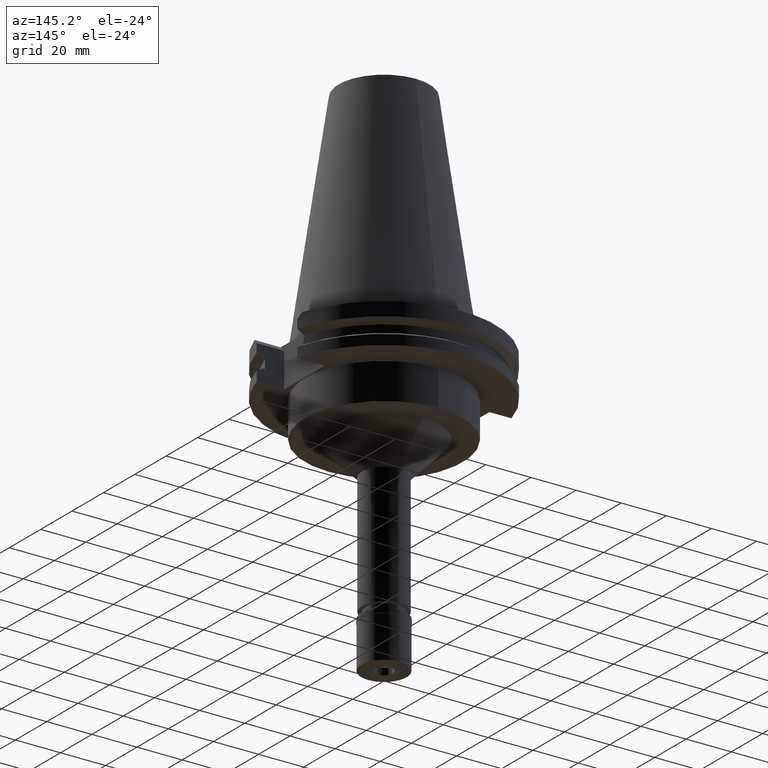
[diagram: clean part render]
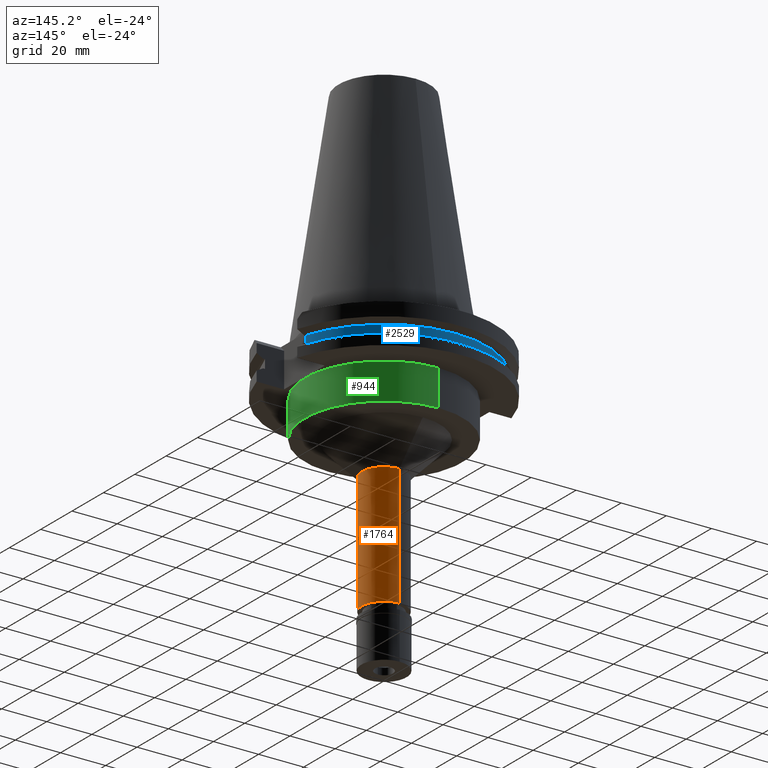
[diagram: same view with three faces highlighted in distinct colors, each labeled with its STEP entity id]
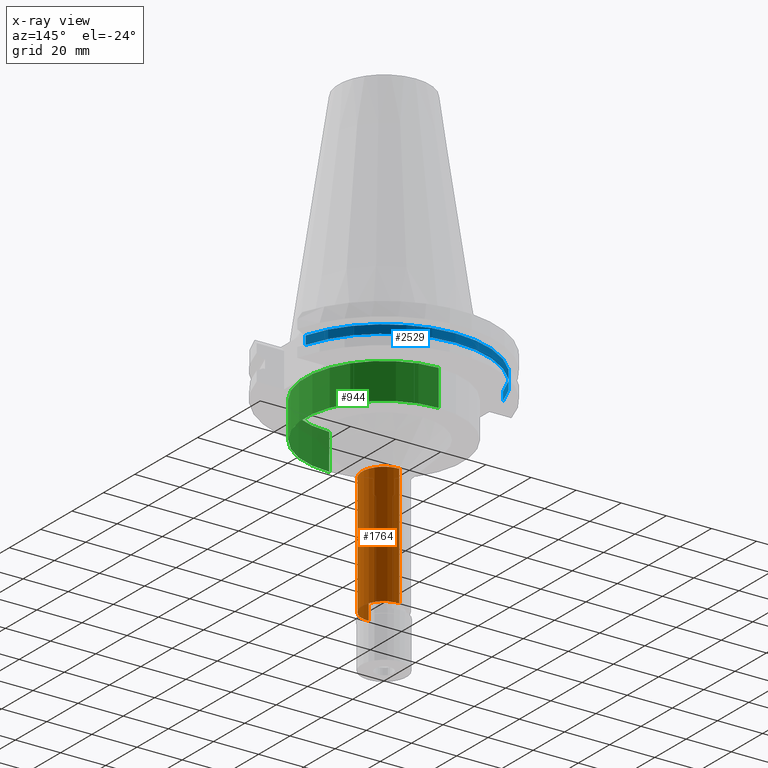
[diagram: x-ray of the same camera — body ghosted, the three highlighted faces saturated]
A machine part, auxiliary view with three faces highlighted in distinct colors.
The next image is the same camera in x-ray (body ghosted, the three faces saturated) — at least one of them is partly hidden behind the body in this view.
Their STEP definitions:

[orange] entity #1764 — the highlighted cylindrical surface (edge-blend (fillet) strip) has radius 9.75 mm, axis along (0, 0, -1).
#15 = VECTOR ( 'NONE', #2985, 1000.000000000000000 ) ;
#98 = DIRECTION ( 'NONE',  ( 0.0000000000000000000, 0.0000000000000000000, -1.000000000000000000 ) ) ;
#159 = CARTESIAN_POINT ( 'NONE',  ( 0.0000000000000000000, 9.750000000000000000, -50.00000000000000000 ) ) ;
#237 = CIRCLE ( 'NONE', #2814, 9.750000000000000000 ) ;
#255 = CARTESIAN_POINT ( 'NONE',  ( 0.0000000000000000000, 9.750000000000000000, -103.5999999999999943 ) ) ;
#349 = CARTESIAN_POINT ( 'NONE',  ( 0.0000000000000000000, 9.750000000000000000, -50.00000000000000000 ) ) ;
#390 = DIRECTION ( 'NONE',  ( 0.0000000000000000000, 0.0000000000000000000, 1.000000000000000000 ) ) ;
#404 = VERTEX_POINT ( 'NONE', #918 ) ;
#695 = CARTESIAN_POINT ( 'NONE',  ( 0.0000000000000000000, -9.750000000000000000, -50.00000000000000000 ) ) ;
#702 = LINE ( 'NONE', #159, #15 ) ;
#741 = CYLINDRICAL_SURFACE ( 'NONE', #1033, 9.750000000000000000 ) ;
#918 = CARTESIAN_POINT ( 'NONE',  ( 0.0000000000000000000, -9.750000000000000000, -103.5999999999999943 ) ) ;
#940 = DIRECTION ( 'NONE',  ( 0.0000000000000000000, -1.000000000000000000, 0.0000000000000000000 ) ) ;
#970 = DIRECTION ( 'NONE',  ( 0.0000000000000000000, -1.000000000000000000, 0.0000000000000000000 ) ) ;
#1033 = AXIS2_PLACEMENT_3D ( 'NONE', #1514, #2054, #970 ) ;
#1115 = ORIENTED_EDGE ( 'NONE', *, *, #2367, .T. ) ;
#1180 = CARTESIAN_POINT ( 'NONE',  ( 0.0000000000000000000, -9.750000000000000000, -50.00000000000000000 ) ) ;
#1202 = AXIS2_PLACEMENT_3D ( 'NONE', #3271, #390, #940 ) ;
#1233 = ORIENTED_EDGE ( 'NONE', *, *, #2487, .T. ) ;
#1290 = VERTEX_POINT ( 'NONE', #255 ) ;
#1514 = CARTESIAN_POINT ( 'NONE',  ( 0.0000000000000000000, 2.603966489026999937E-14, 112.6299999999999955 ) ) ;
#1532 = VERTEX_POINT ( 'NONE', #349 ) ;
#1636 = ORIENTED_EDGE ( 'NONE', *, *, #2383, .F. ) ;
#1637 = CIRCLE ( 'NONE', #1202, 9.750000000000000000 ) ;
#1764 = ADVANCED_FACE ( 'NONE', ( #2798 ), #741, .T. ) ;
#1988 = CARTESIAN_POINT ( 'NONE',  ( 0.0000000000000000000, 0.0000000000000000000, -50.00000000000000000 ) ) ;
#2018 = VECTOR ( 'NONE', #98, 1000.000000000000000 ) ;
#2054 = DIRECTION ( 'NONE',  ( 0.0000000000000000000, 0.0000000000000000000, -1.000000000000000000 ) ) ;
#2132 = VERTEX_POINT ( 'NONE', #1180 ) ;
#2237 = DIRECTION ( 'NONE',  ( 0.0000000000000000000, 1.000000000000000000, 0.0000000000000000000 ) ) ;
#2238 = EDGE_CURVE ( 'NONE', #2132, #404, #2995, .T. ) ;
#2240 = ORIENTED_EDGE ( 'NONE', *, *, #2238, .T. ) ;
#2367 = EDGE_CURVE ( 'NONE', #1532, #2132, #237, .T. ) ;
#2383 = EDGE_CURVE ( 'NONE', #1532, #1290, #702, .T. ) ;
#2487 = EDGE_CURVE ( 'NONE', #404, #1290, #1637, .T. ) ;
#2535 = EDGE_LOOP ( 'NONE', ( #1115, #2240, #1233, #1636 ) ) ;
#2798 = FACE_OUTER_BOUND ( 'NONE', #2535, .T. ) ;
#2814 = AXIS2_PLACEMENT_3D ( 'NONE', #1988, #3224, #2237 ) ;
#2985 = DIRECTION ( 'NONE',  ( 0.0000000000000000000, 0.0000000000000000000, -1.000000000000000000 ) ) ;
#2995 = LINE ( 'NONE', #695, #2018 ) ;
#3224 = DIRECTION ( 'NONE',  ( 0.0000000000000000000, 0.0000000000000000000, -1.000000000000000000 ) ) ;
#3271 = CARTESIAN_POINT ( 'NONE',  ( 0.0000000000000000000, 2.603966489026999937E-14, -103.5999999999999943 ) ) ;

[blue] entity #2529 — the highlighted cylindrical surface (partial cylindrical patch) has radius 45.645 mm, axis along (0, 0, -1).
#141 = FACE_OUTER_BOUND ( 'NONE', #541, .T. ) ;
#145 = VERTEX_POINT ( 'NONE', #3043 ) ;
#180 = VECTOR ( 'NONE', #2021, 1000.000000000000000 ) ;
#181 = VERTEX_POINT ( 'NONE', #2313 ) ;
#192 = DIRECTION ( 'NONE',  ( 0.0000000000000000000, -1.000000000000000000, 0.0000000000000000000 ) ) ;
#279 = CARTESIAN_POINT ( 'NONE',  ( 0.0000000000000000000, 2.603966489026999937E-14, -13.04749999999999943 ) ) ;
#350 = DIRECTION ( 'NONE',  ( 0.0000000000000000000, 0.0000000000000000000, 1.000000000000000000 ) ) ;
#541 = EDGE_LOOP ( 'NONE', ( #2448, #996, #1914, #621 ) ) ;
#621 = ORIENTED_EDGE ( 'NONE', *, *, #1849, .T. ) ;
#680 = CYLINDRICAL_SURFACE ( 'NONE', #1417, 45.64499999999999602 ) ;
#690 = VECTOR ( 'NONE', #350, 1000.000000000000000 ) ;
#807 = CARTESIAN_POINT ( 'NONE',  ( -43.76795631508999662, 12.95500000000000007, -9.207499999999999574 ) ) ;
#818 = EDGE_CURVE ( 'NONE', #145, #2354, #2866, .T. ) ;
#932 = CIRCLE ( 'NONE', #2371, 45.64500000000001734 ) ;
#996 = ORIENTED_EDGE ( 'NONE', *, *, #1640, .T. ) ;
#1169 = DIRECTION ( 'NONE',  ( 0.0000000000000000000, 0.0000000000000000000, -1.000000000000000000 ) ) ;
#1275 = VERTEX_POINT ( 'NONE', #2821 ) ;
#1311 = AXIS2_PLACEMENT_3D ( 'NONE', #1458, #2198, #1419 ) ;
#1358 = CARTESIAN_POINT ( 'NONE',  ( 43.76795631508999662, 12.95500000000000007, -13.04749999999999943 ) ) ;
#1417 = AXIS2_PLACEMENT_3D ( 'NONE', #2738, #1169, #192 ) ;
#1419 = DIRECTION ( 'NONE',  ( 0.0000000000000000000, 1.000000000000000000, 0.0000000000000000000 ) ) ;
#1427 = CARTESIAN_POINT ( 'NONE',  ( 43.76795631508999662, 12.95500000000000007, -9.207499999999999574 ) ) ;
#1458 = CARTESIAN_POINT ( 'NONE',  ( 0.0000000000000000000, 2.603966489026999937E-14, -9.207499999999999574 ) ) ;
#1476 = CIRCLE ( 'NONE', #1311, 45.64499999999999602 ) ;
#1540 = DIRECTION ( 'NONE',  ( 0.0000000000000000000, 0.0000000000000000000, 1.000000000000000000 ) ) ;
#1640 = EDGE_CURVE ( 'NONE', #1275, #2354, #1476, .T. ) ;
#1849 = EDGE_CURVE ( 'NONE', #145, #181, #932, .T. ) ;
#1914 = ORIENTED_EDGE ( 'NONE', *, *, #818, .F. ) ;
#2021 = DIRECTION ( 'NONE',  ( 0.0000000000000000000, 0.0000000000000000000, -1.000000000000000000 ) ) ;
#2038 = DIRECTION ( 'NONE',  ( 0.9588773428654665532, 0.2838207908861898887, 0.0000000000000000000 ) ) ;
#2072 = LINE ( 'NONE', #807, #180 ) ;
#2198 = DIRECTION ( 'NONE',  ( 0.0000000000000000000, 0.0000000000000000000, -1.000000000000000000 ) ) ;
#2313 = CARTESIAN_POINT ( 'NONE',  ( -43.76795631508999662, 12.95500000000000007, -13.04749999999999943 ) ) ;
#2354 = VERTEX_POINT ( 'NONE', #1427 ) ;
#2371 = AXIS2_PLACEMENT_3D ( 'NONE', #279, #1540, #2038 ) ;
#2448 = ORIENTED_EDGE ( 'NONE', *, *, #2768, .F. ) ;
#2529 = ADVANCED_FACE ( 'NONE', ( #141 ), #680, .T. ) ;
#2738 = CARTESIAN_POINT ( 'NONE',  ( 0.0000000000000000000, 2.603966489026999937E-14, 112.6299999999999955 ) ) ;
#2768 = EDGE_CURVE ( 'NONE', #1275, #181, #2072, .T. ) ;
#2821 = CARTESIAN_POINT ( 'NONE',  ( -43.76795631508999662, 12.95500000000000007, -9.207499999999999574 ) ) ;
#2866 = LINE ( 'NONE', #1358, #690 ) ;
#3043 = CARTESIAN_POINT ( 'NONE',  ( 43.76795631508999662, 12.95500000000000007, -13.04749999999999943 ) ) ;

[green] entity #944 — the highlighted cylindrical surface (partial cylindrical patch) has radius 34.925 mm, axis along (0, 0, -1).
#220 = ORIENTED_EDGE ( 'NONE', *, *, #1196, .T. ) ;
#429 = ORIENTED_EDGE ( 'NONE', *, *, #1617, .T. ) ;
#489 = DIRECTION ( 'NONE',  ( 0.0000000000000000000, -1.000000000000000000, 0.0000000000000000000 ) ) ;
#556 = VECTOR ( 'NONE', #2775, 1000.000000000000000 ) ;
#712 = DIRECTION ( 'NONE',  ( 0.0000000000000000000, 0.0000000000000000000, -1.000000000000000000 ) ) ;
#721 = CARTESIAN_POINT ( 'NONE',  ( 0.0000000000000000000, 34.92499999999999716, -19.05000000000000071 ) ) ;
#733 = EDGE_LOOP ( 'NONE', ( #429, #1314, #220, #1071 ) ) ;
#758 = AXIS2_PLACEMENT_3D ( 'NONE', #3029, #712, #489 ) ;
#763 = VERTEX_POINT ( 'NONE', #2199 ) ;
#944 = ADVANCED_FACE ( 'NONE', ( #2537 ), #2795, .T. ) ;
#956 = DIRECTION ( 'NONE',  ( 0.0000000000000000000, 0.0000000000000000000, -1.000000000000000000 ) ) ;
#1071 = ORIENTED_EDGE ( 'NONE', *, *, #2576, .F. ) ;
#1196 = EDGE_CURVE ( 'NONE', #763, #2186, #2462, .T. ) ;
#1201 = LINE ( 'NONE', #721, #2971 ) ;
#1205 = LINE ( 'NONE', #2446, #556 ) ;
#1306 = DIRECTION ( 'NONE',  ( 0.0000000000000000000, -1.000000000000000000, 0.0000000000000000000 ) ) ;
#1314 = ORIENTED_EDGE ( 'NONE', *, *, #2351, .T. ) ;
#1351 = CARTESIAN_POINT ( 'NONE',  ( 0.0000000000000000000, -34.92499999999999716, -19.05000000000000071 ) ) ;
#1428 = VERTEX_POINT ( 'NONE', #1625 ) ;
#1494 = AXIS2_PLACEMENT_3D ( 'NONE', #2803, #3305, #1306 ) ;
#1617 = EDGE_CURVE ( 'NONE', #1428, #3322, #3124, .T. ) ;
#1625 = CARTESIAN_POINT ( 'NONE',  ( 0.0000000000000000000, 34.92499999999999716, -19.05000000000000071 ) ) ;
#1672 = CARTESIAN_POINT ( 'NONE',  ( 0.0000000000000000000, 34.92499999999999716, -35.00000000000000000 ) ) ;
#1926 = CARTESIAN_POINT ( 'NONE',  ( 0.0000000000000000000, 2.603966489026999937E-14, -19.05000000000000071 ) ) ;
#2186 = VERTEX_POINT ( 'NONE', #1672 ) ;
#2199 = CARTESIAN_POINT ( 'NONE',  ( 0.0000000000000000000, -34.92499999999999716, -35.00000000000000000 ) ) ;
#2351 = EDGE_CURVE ( 'NONE', #3322, #763, #1205, .T. ) ;
#2446 = CARTESIAN_POINT ( 'NONE',  ( 0.0000000000000000000, -34.92499999999999716, -19.05000000000000071 ) ) ;
#2462 = CIRCLE ( 'NONE', #1494, 34.92499999999999716 ) ;
#2502 = AXIS2_PLACEMENT_3D ( 'NONE', #1926, #2933, #2960 ) ;
#2537 = FACE_OUTER_BOUND ( 'NONE', #733, .T. ) ;
#2576 = EDGE_CURVE ( 'NONE', #1428, #2186, #1201, .T. ) ;
#2775 = DIRECTION ( 'NONE',  ( 0.0000000000000000000, 0.0000000000000000000, -1.000000000000000000 ) ) ;
#2795 = CYLINDRICAL_SURFACE ( 'NONE', #758, 34.92499999999999716 ) ;
#2803 = CARTESIAN_POINT ( 'NONE',  ( 0.0000000000000000000, 2.603966489026999937E-14, -35.00000000000000000 ) ) ;
#2933 = DIRECTION ( 'NONE',  ( 0.0000000000000000000, 0.0000000000000000000, -1.000000000000000000 ) ) ;
#2960 = DIRECTION ( 'NONE',  ( 0.0000000000000000000, 1.000000000000000000, 0.0000000000000000000 ) ) ;
#2971 = VECTOR ( 'NONE', #956, 1000.000000000000000 ) ;
#3029 = CARTESIAN_POINT ( 'NONE',  ( 0.0000000000000000000, 2.603966489026999937E-14, 112.6299999999999955 ) ) ;
#3124 = CIRCLE ( 'NONE', #2502, 34.92499999999999716 ) ;
#3305 = DIRECTION ( 'NONE',  ( 0.0000000000000000000, 0.0000000000000000000, 1.000000000000000000 ) ) ;
#3322 = VERTEX_POINT ( 'NONE', #1351 ) ;